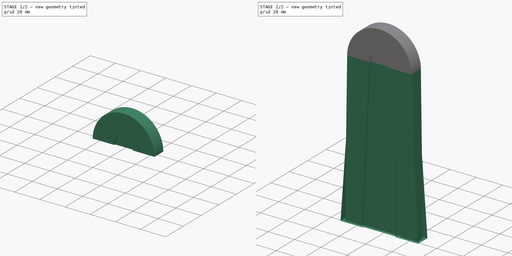
[diagram: build sequence overview — one tinted view per stage of 2, left to right]
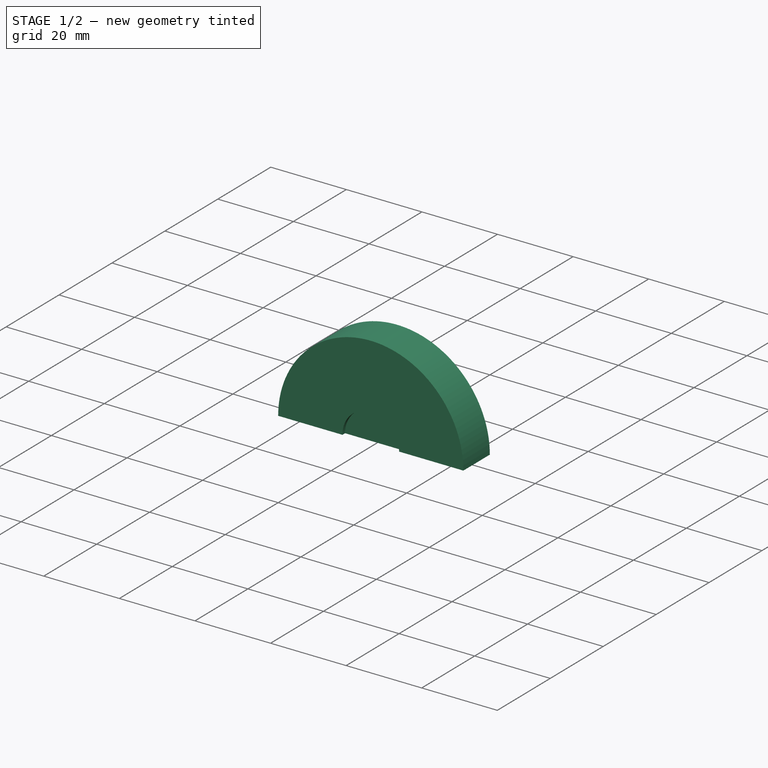
[diagram: stage 1 of 2 — iso view after this stage's code; geometry added in this stage tinted green]
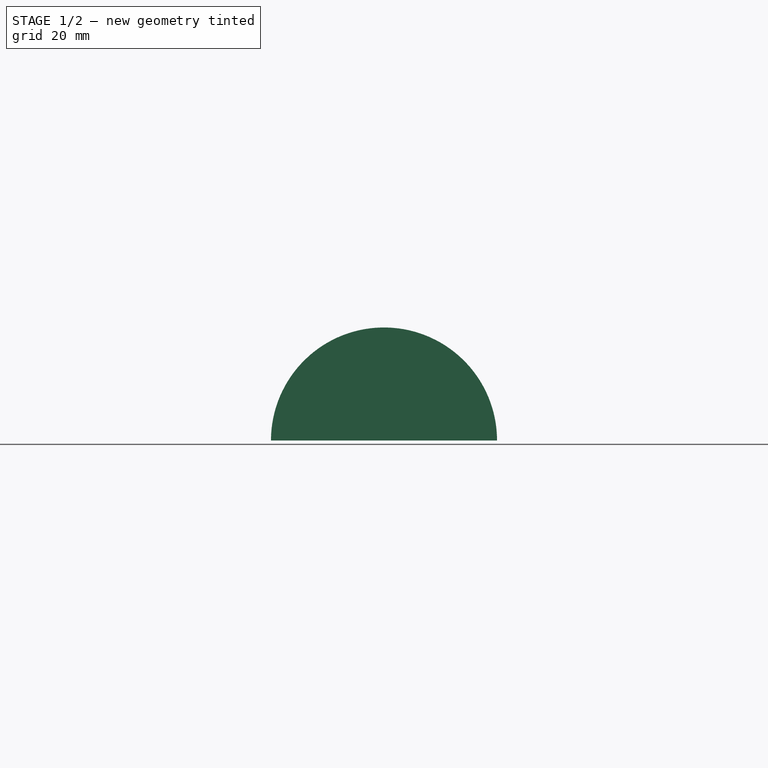
[diagram: stage 1 of 2 — front view after this stage's code; geometry added in this stage tinted green]
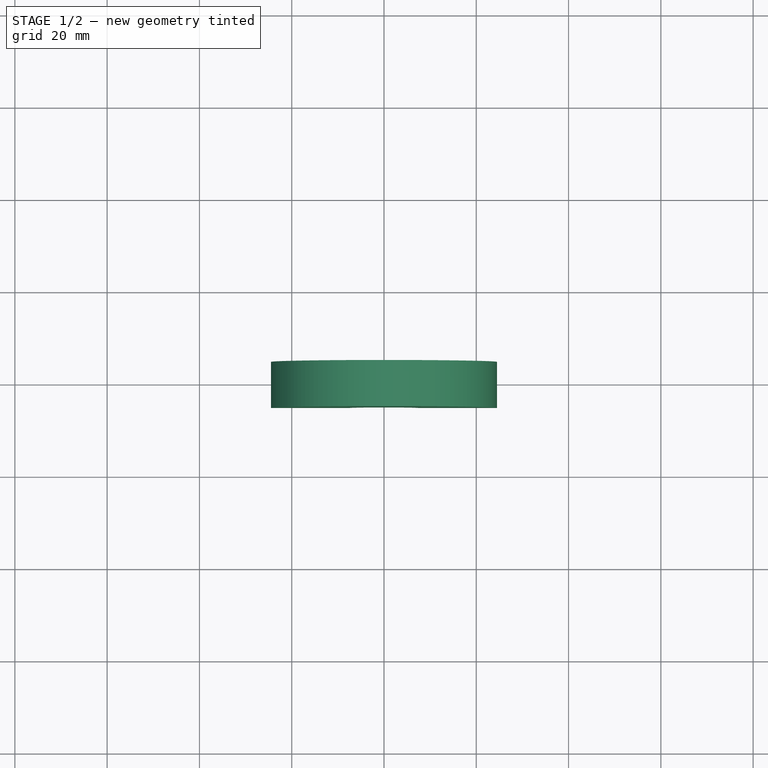
[diagram: stage 1 of 2 — top view after this stage's code; geometry added in this stage tinted green]
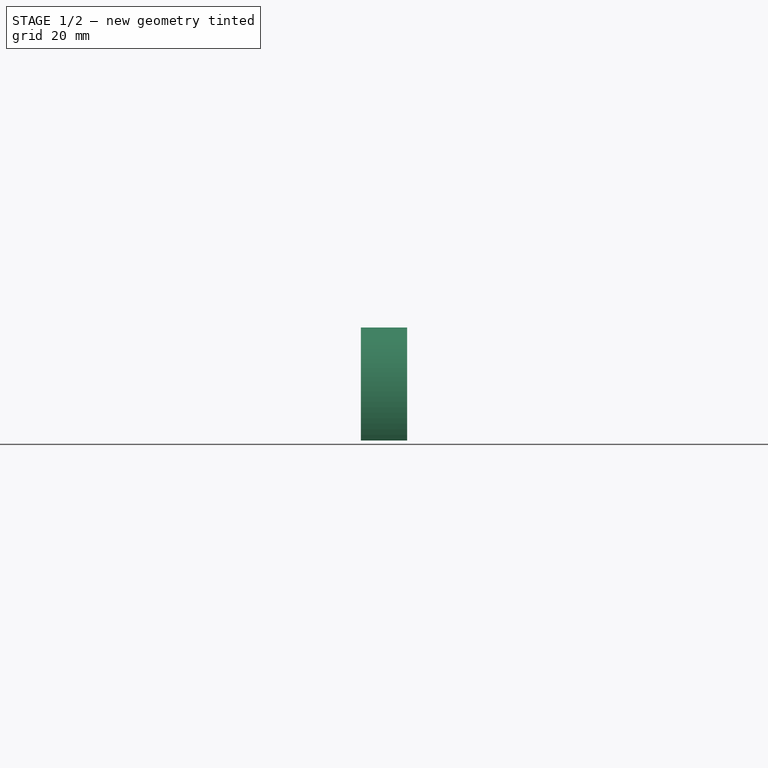
[diagram: stage 1 of 2 — right view after this stage's code; geometry added in this stage tinted green]
FCSTD DOCUMENT  (FreeCAD 0.19R24291 (Git))
Label: hoesje rotated v2
License: All rights reserved
LicenseURL: http://en.wikipedia.org/wiki/All_rights_reserved
objects: Sketcher::SketchObject×3, Spreadsheet::Sheet×1, PartDesign::Revolution×1, PartDesign::AdditiveLoft×1, PartDesign::Body×1
note: 8 computed .brp shape members not serialized (recipe doc carries the construction recipe); baked Part::Feature solids carry a one-line shape summary decoded from their .brp

FEATURE [Sketcher::SketchObject] Sketch  label="Cirle"
  FullyConstrained = true
  MapMode = 5
  Support = -> [XY_Plane]
  expr: Constraints[46] = <<values>>.shell
  expr: Constraints[45] = <<values>>.shell
  expr: Constraints[19] = <<values>>.band
  expr: Constraints[43] = <<values>>.shell
  expr: Constraints[18] = <<values>>.heightOuter
  expr: Constraints[17] = <<values>>.heightInner
  expr: Constraints[44] = <<values>>.shell
  expr: Constraints[16] = <<values>>.radius
  sketch-geometry (16):
    g0: LineSegment StartX=0 StartY=2 StartZ=0 EndX=-9.5 EndY=2 EndZ=0
    g1: LineSegment StartX=-9.5 StartY=2 StartZ=0 EndX=-9.5 EndY=3 EndZ=0
    g2: LineSegment StartX=-9.5 StartY=3 StartZ=0 EndX=-22.5 EndY=3 EndZ=0
    g3: LineSegment StartX=-22.5 StartY=3 StartZ=0 EndX=-22.5 EndY=-3 EndZ=0
    g4: LineSegment StartX=-22.5 StartY=-3 StartZ=0 EndX=-9.5 EndY=-3 EndZ=0
    g5: LineSegment StartX=-9.5 StartY=-3 StartZ=0 EndX=-9.5 EndY=-2 EndZ=0
    g6: LineSegment StartX=-9.5 StartY=-2 StartZ=0 EndX=0 EndY=-2 EndZ=0
    g7: LineSegment StartX=0 StartY=2 StartZ=0 EndX=0 EndY=5 EndZ=0
    g8: LineSegment StartX=0 StartY=5 StartZ=0 EndX=-6.5 EndY=5 EndZ=0
    g9: LineSegment StartX=-6.5 StartY=5 StartZ=0 EndX=-6.5 EndY=6 EndZ=0
    g10: LineSegment StartX=-6.5 StartY=6 StartZ=0 EndX=-25.5 EndY=6 EndZ=0
    g11: LineSegment StartX=-25.5 StartY=6 StartZ=0 EndX=-25.5 EndY=-6 EndZ=0
    g12: LineSegment StartX=-25.5 StartY=-6 StartZ=0 EndX=6.5 EndY=-6 EndZ=0
    g13: LineSegment StartX=6.5 StartY=-6 StartZ=0 EndX=6.5 EndY=-5 EndZ=0
    g14: LineSegment StartX=6.5 StartY=-5 StartZ=0 EndX=0 EndY=-5 EndZ=0
    g15: LineSegment StartX=0 StartY=-5 StartZ=0 EndX=0 EndY=-2 EndZ=0
  constraints (47):
    c: PointOnObject(g0,g-2)
    c: Horizontal(g0)
    c: Coincident(g0,g1)
    c: Vertical(g1)
    c: Coincident(g1,g2)
    c: Horizontal(g2)
    c: Coincident(g2,g3)
    c: Vertical(g3)
    c: Coincident(g3,g4)
    c: Horizontal(g4)
    c: Coincident(g4,g5)
    c: Vertical(g5)
    c: Coincident(g5,g6)
    c: Horizontal(g6)
    c: Equal(g0,g6)
    c: Equal(g1,g5)
    c: DistanceX(g0,g0) = 9.5
    c: DistanceY(g6,g0) = 4
    c: DistanceY(g3,g2) = 6
    c: DistanceX(g2,g2) = 13
    c: Symmetric(g0,g6,g-1)
    c: Coincident(g0,g7)
    c: PointOnObject(g7,g-2)
    c: Coincident(g7,g8)
    c: Horizontal(g8)
    c: Coincident(g8,g9)
    c: Vertical(g9)
    c: Coincident(g9,g10)
    c: Horizontal(g10)
    c: Coincident(g10,g11)
    c: Vertical(g11)
    c: Coincident(g11,g12)
    c: Horizontal(g12)
    c: Coincident(g12,g13)
    c: Vertical(g13)
    c: Coincident(g13,g14)
    c: PointOnObject(g14,g-2)
    c: Horizontal(g14)
    c: Coincident(g14,g15)
    c: Coincident(g15,g6)
    c: Equal(g8,g14)
    c: Equal(g9,g13)
    c: Equal(g7,g15)
    c: DistanceY(g0,g7) = 3
    c: DistanceX(g1,g8) = 3
    c: DistanceY(g1,g9) = 3
    c: DistanceX(g10,g2) = 3
FEATURE [Spreadsheet::Sheet] Spreadsheet  label="values"
  cells = A1=shell; B1(shell)==3mm; A2=height outer; B2(heightOuter)==6mm; A3=height inner; B3(heightInner)==4mm; A4=band; B4(band)==13mm; A5=radius ; B5(radius)==9.5mm; A6=opening; B6(opening)==29mm
FEATURE [PartDesign::Revolution] Revolution
  Angle = 180
  Axis = (0,1,0)
  Base = (0,0,0)
  Profile = -> Sketch
  ReferenceAxis = -> Sketch [V_Axis]
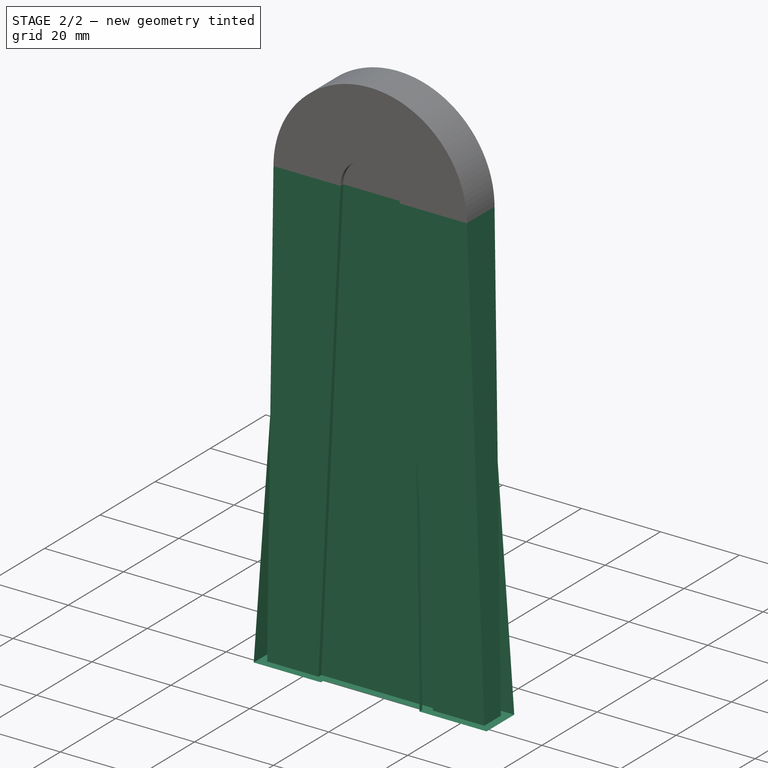
[diagram: stage 2 of 2 — iso view after this stage's code; geometry added in this stage tinted green]
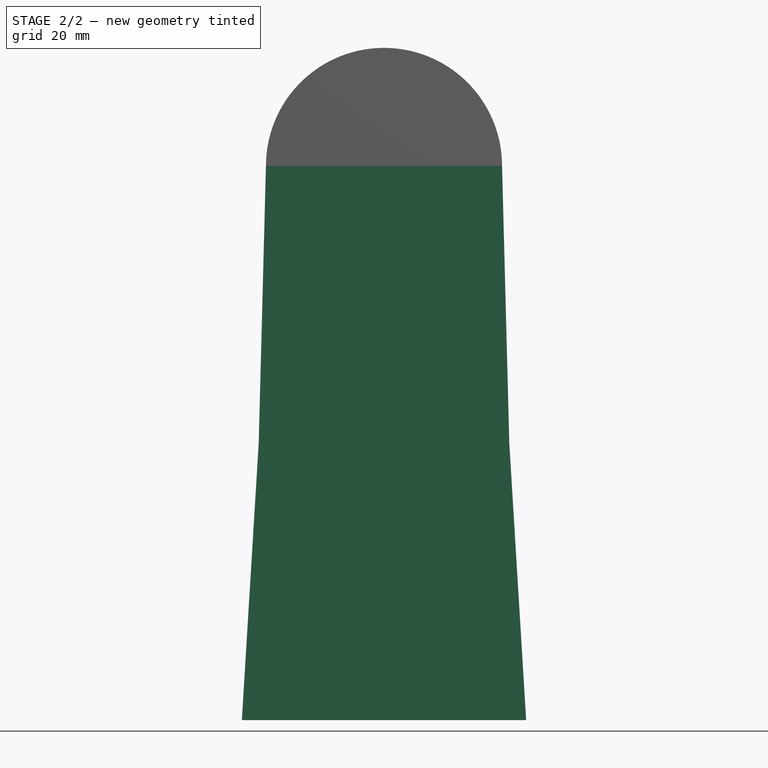
[diagram: stage 2 of 2 — front view after this stage's code; geometry added in this stage tinted green]
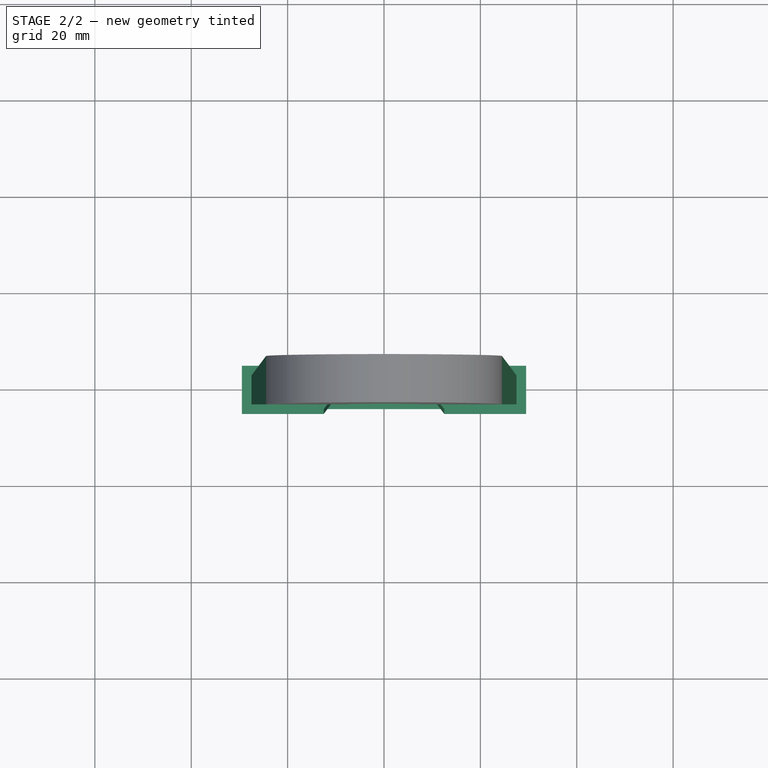
[diagram: stage 2 of 2 — top view after this stage's code; geometry added in this stage tinted green]
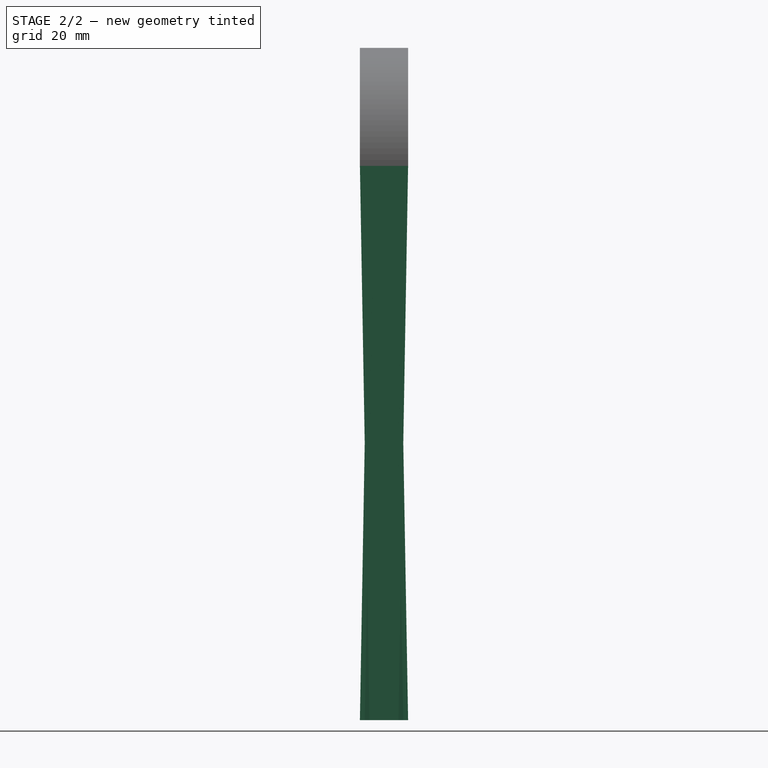
[diagram: stage 2 of 2 — right view after this stage's code; geometry added in this stage tinted green]
FEATURE [Sketcher::SketchObject] Sketch002  label="tail"
  AttachmentOffset = pos=(0,0,115) rot=(0,0,1;0rad)
  ExternalGeometry = -> [Revolution]
  FullyConstrained = true
  MapMode = 5
  Placement = pos=(0,0,-115) rot=(1,0,0;3.14159rad)
  Support = -> [Revolution]
  expr: Constraints[68] = <<values>>.shell
  expr: Constraints[65] = <<values>>.shell
  expr: Constraints[64] = <<values>>.shell
  expr: Constraints[34] = <<values>>.heightOuter
  expr: Constraints[69] = <<values>>.shell
  expr: Constraints[33] = <<values>>.heightInner
  expr: Constraints[29] = <<values>>.band
  expr: Constraints[28] = <<values>>.opening
  sketch-geometry (24):
    g0: LineSegment StartX=-14.5 StartY=2 StartZ=0 EndX=-14.5 EndY=3 EndZ=0
    g1: LineSegment StartX=-14.5 StartY=3 StartZ=0 EndX=-27.5 EndY=3 EndZ=0
    g2: LineSegment StartX=-27.5 StartY=3 StartZ=0 EndX=-27.5 EndY=-3 EndZ=0
    g3: LineSegment StartX=-27.5 StartY=-3 StartZ=0 EndX=-14.5 EndY=-3 EndZ=0
    g4: LineSegment StartX=-14.5 StartY=-3 StartZ=0 EndX=-14.5 EndY=-2 EndZ=0
    g5: LineSegment StartX=-14.5 StartY=-2 StartZ=0 EndX=14.5 EndY=-2 EndZ=0
    g6: LineSegment StartX=14.5 StartY=-2 StartZ=0 EndX=14.5 EndY=-3 EndZ=0
    g7: LineSegment StartX=14.5 StartY=-3 StartZ=0 EndX=27.5 EndY=-3 EndZ=0
    g8: LineSegment StartX=27.5 StartY=-3 StartZ=0 EndX=27.5 EndY=3 EndZ=0
    g9: LineSegment StartX=27.5 StartY=3 StartZ=0 EndX=14.5 EndY=3 EndZ=0
    g10: LineSegment StartX=14.5 StartY=3 StartZ=0 EndX=14.5 EndY=2 EndZ=0
    g11: LineSegment StartX=-14.5 StartY=2 StartZ=0 EndX=14.5 EndY=2 EndZ=0
    g12: LineSegment StartX=-29.5 StartY=5 StartZ=0 EndX=-12.5 EndY=5 EndZ=0
    g13: LineSegment StartX=-12.5 StartY=5 StartZ=0 EndX=-12.5 EndY=4 EndZ=0
    g14: LineSegment StartX=-12.5 StartY=4 StartZ=0 EndX=12.5 EndY=4 EndZ=0
    g15: LineSegment StartX=12.5 StartY=4 StartZ=0 EndX=12.5 EndY=5 EndZ=0
    g16: LineSegment StartX=12.5 StartY=5 StartZ=0 EndX=29.5 EndY=5 EndZ=0
    g17: LineSegment StartX=29.5 StartY=5 StartZ=0 EndX=29.5 EndY=-5 EndZ=0
    g18: LineSegment StartX=29.5 StartY=-5 StartZ=0 EndX=12.5 EndY=-5 EndZ=0
    g19: LineSegment StartX=12.5 StartY=-5 StartZ=0 EndX=12.5 EndY=-4 EndZ=0
    g20: LineSegment StartX=12.5 StartY=-4 StartZ=0 EndX=-12.5 EndY=-4 EndZ=0
    g21: LineSegment StartX=-12.5 StartY=-4 StartZ=0 EndX=-12.5 EndY=-5 EndZ=0
    g22: LineSegment StartX=-12.5 StartY=-5 StartZ=0 EndX=-29.5 EndY=-5 EndZ=0
    g23: LineSegment StartX=-29.5 StartY=-5 StartZ=0 EndX=-29.5 EndY=5 EndZ=0
  constraints (70):
    c: Coincident(g0,g1)
    c: Horizontal(g1)
    c: Coincident(g1,g2)
    c: Vertical(g2)
    c: Coincident(g2,g3)
    c: Horizontal(g3)
    c: Coincident(g3,g4)
    c: Coincident(g4,g5)
    c: Horizontal(g5)
    c: Coincident(g5,g6)
    c: Coincident(g6,g7)
    c: Horizontal(g7)
    c: Coincident(g7,g8)
    c: Coincident(g8,g9)
    c: Horizontal(g9)
    c: Coincident(g9,g10)
    c: Vertical(g10)
    c: Equal(g0,g10)
    c: Equal(g4,g6)
    c: Equal(g1,g3)
    c: Equal(g3,g7)
    c: Equal(g7,g9)
    c: Coincident(g11,g0)
    c: Coincident(g11,g10)
    c: Horizontal(g11)
    c: Equal(g0,g4)
    c: Vertical(g6)
    c: Vertical(g0)
    c: DistanceX(g11,g11) = 29
    c: DistanceX(g1,g1) = 13
    c: Symmetric(g8,g7,g-1)
    c: DistanceY(g-7,g-9) = 8
    c: DistanceY(g-7,g-9) = 8
    c: DistanceY(g4,g0) = 4
    c: DistanceY(g2,g1) = 6
    c: Symmetric(g7,g2,g-2)
    c: Horizontal(g12)
    c: Coincident(g12,g13)
    c: Vertical(g13)
    c: Coincident(g13,g14)
    c: Horizontal(g14)
    c: Coincident(g14,g15)
    c: Vertical(g15)
    c: Coincident(g15,g16)
    c: Horizontal(g16)
    c: Coincident(g16,g17)
    c: Coincident(g17,g18)
    c: Horizontal(g18)
    c: Coincident(g18,g19)
    c: Vertical(g19)
    c: Coincident(g19,g20)
    c: Horizontal(g20)
    c: Coincident(g20,g21)
    c: Vertical(g21)
    c: Coincident(g21,g22)
    c: Horizontal(g22)
    c: Coincident(g22,g23)
    c: Coincident(g23,g12)
    c: Vertical(g23)
    c: Equal(g23,g17)
    c: Equal(g22,g18)
    c: Equal(g18,g16)
    c: Equal(g16,g12)
    c: Equal(g15,g19)
    c: DistanceY(g8,g16) = 2
    c: DistanceX(g8,g16) = 2
    c: Symmetric(g16,g17,g-1)
    c: Symmetric(g22,g17,g-2)
    c: DistanceX(g18,g6) = 2
    c: DistanceY(g19,g5) = 2
FEATURE [Sketcher::SketchObject] Sketch003  label="head"
  ExternalGeometry = -> [Revolution]
  FullyConstrained = true
  MapMode = 5
  Placement = pos=(0,0,0) rot=(1,0,0;3.14159rad)
  Support = -> [Revolution]
  sketch-geometry (24):
    g0: LineSegment StartX=-24.5 StartY=5 StartZ=0 EndX=-7.5 EndY=5 EndZ=0
    g1: LineSegment StartX=-7.5 StartY=5 StartZ=0 EndX=-7.5 EndY=4 EndZ=0
    g2: LineSegment StartX=-7.5 StartY=4 StartZ=0 EndX=7.5 EndY=4 EndZ=0
    g3: LineSegment StartX=7.5 StartY=4 StartZ=0 EndX=7.5 EndY=5 EndZ=0
    g4: LineSegment StartX=7.5 StartY=5 StartZ=0 EndX=24.5 EndY=5 EndZ=0
    g5: LineSegment StartX=24.5 StartY=5 StartZ=0 EndX=24.5 EndY=-5 EndZ=0
    g6: LineSegment StartX=24.5 StartY=-5 StartZ=0 EndX=7.5 EndY=-5 EndZ=0
    g7: LineSegment StartX=7.5 StartY=-5 StartZ=0 EndX=7.5 EndY=-4 EndZ=0
    g8: LineSegment StartX=7.5 StartY=-4 StartZ=0 EndX=-7.5 EndY=-4 EndZ=0
    g9: LineSegment StartX=-7.5 StartY=-4 StartZ=0 EndX=-7.5 EndY=-5 EndZ=0
    g10: LineSegment StartX=-7.5 StartY=-5 StartZ=0 EndX=-24.5 EndY=-5 EndZ=0
    g11: LineSegment StartX=-24.5 StartY=-5 StartZ=0 EndX=-24.5 EndY=5 EndZ=0
    g12: LineSegment StartX=-22.5 StartY=3 StartZ=0 EndX=-9.5 EndY=3 EndZ=0
    g13: LineSegment StartX=-9.5 StartY=3 StartZ=0 EndX=-9.5 EndY=2 EndZ=0
    g14: LineSegment StartX=-9.5 StartY=2 StartZ=0 EndX=9.5 EndY=2 EndZ=0
    g15: LineSegment StartX=9.5 StartY=2 StartZ=0 EndX=9.5 EndY=3 EndZ=0
    g16: LineSegment StartX=9.5 StartY=3 StartZ=0 EndX=22.5 EndY=3 EndZ=0
    g17: LineSegment StartX=22.5 StartY=3 StartZ=0 EndX=22.5 EndY=-3 EndZ=0
    g18: LineSegment StartX=22.5 StartY=-3 StartZ=0 EndX=9.5 EndY=-3 EndZ=0
    g19: LineSegment StartX=9.5 StartY=-3 StartZ=0 EndX=9.5 EndY=-2 EndZ=0
    g20: LineSegment StartX=9.5 StartY=-2 StartZ=0 EndX=-9.5 EndY=-2 EndZ=0
    g21: LineSegment StartX=-9.5 StartY=-2 StartZ=0 EndX=-9.5 EndY=-3 EndZ=0
    g22: LineSegment StartX=-9.5 StartY=-3 StartZ=0 EndX=-22.5 EndY=-3 EndZ=0
    g23: LineSegment StartX=-22.5 StartY=-3 StartZ=0 EndX=-22.5 EndY=3 EndZ=0
  constraints (48):
    c: Coincident(g-5,g0)
    c: Coincident(g0,g-6)
    c: Coincident(g0,g1)
    c: Coincident(g1,g-6)
    c: Coincident(g1,g2)
    c: Coincident(g2,g-9)
    c: Coincident(g2,g3)
    c: Coincident(g3,g-10)
    c: Coincident(g3,g4)
    c: Coincident(g4,g-11)
    c: Coincident(g4,g5)
    c: Coincident(g5,g-12)
    c: Coincident(g5,g6)
    c: Coincident(g6,g-13)
    c: Coincident(g6,g7)
    c: Coincident(g7,g-14)
    c: Coincident(g7,g8)
    c: Coincident(g8,g-16)
    c: Coincident(g8,g9)
    c: Coincident(g9,g-16)
    c: Coincident(g9,g10)
    c: Coincident(g10,g-4)
    c: Coincident(g10,g11)
    c: Coincident(g11,g0)
    c: Coincident(g-18,g12)
    c: Coincident(g12,g-19)
    c: Coincident(g12,g13)
    c: Coincident(g13,g-20)
    c: Coincident(g13,g14)
    c: Coincident(g14,g-22)
    c: Coincident(g14,g15)
    c: Coincident(g15,g-23)
    c: Coincident(g15,g16)
    c: Coincident(g16,g-24)
    c: Coincident(g16,g17)
    c: Coincident(g17,g-25)
    c: Coincident(g17,g18)
    c: Coincident(g18,g-26)
    c: Coincident(g18,g19)
    c: Coincident(g19,g-27)
    c: Coincident(g19,g20)
    c: Coincident(g20,g-29)
    c: Coincident(g20,g21)
    c: Coincident(g21,g-30)
    c: Coincident(g21,g22)
    c: Coincident(g22,g-30)
    c: Coincident(g22,g23)
    c: Coincident(g23,g12)
FEATURE [PartDesign::AdditiveLoft] AdditiveLoft
  BaseFeature = -> Revolution
  Closed = true
  Profile = -> Sketch003
  Refine = true
  Ruled = false
  Sections = -> [Sketch002]
FEATURE [PartDesign::Body] Body
  Group = -> [Sketch,Revolution,Sketch002,Sketch003,AdditiveLoft]
  Origin = -> Origin
  Tip = -> Revolution
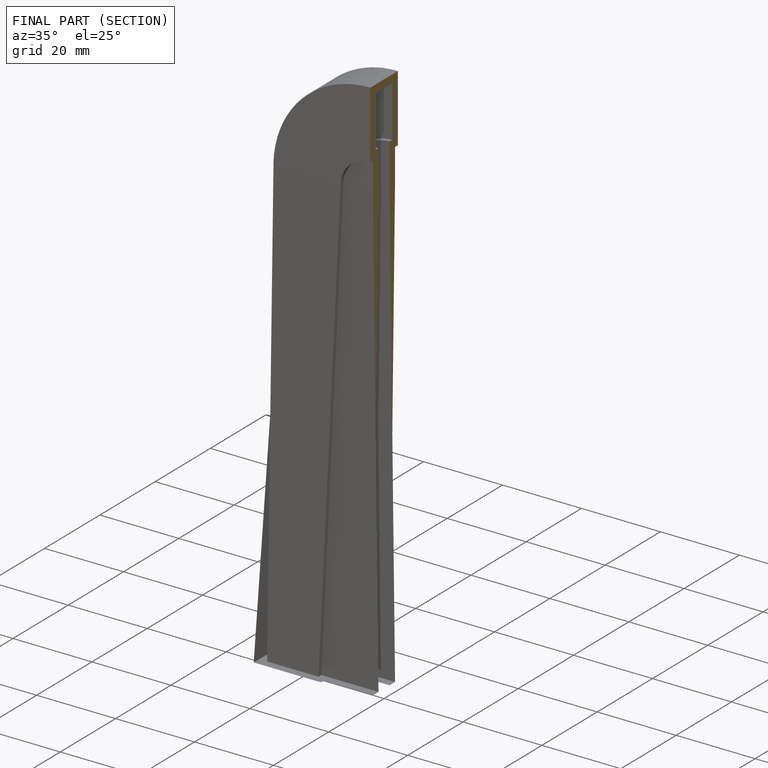
[diagram: finished part — half-section view (interior)]
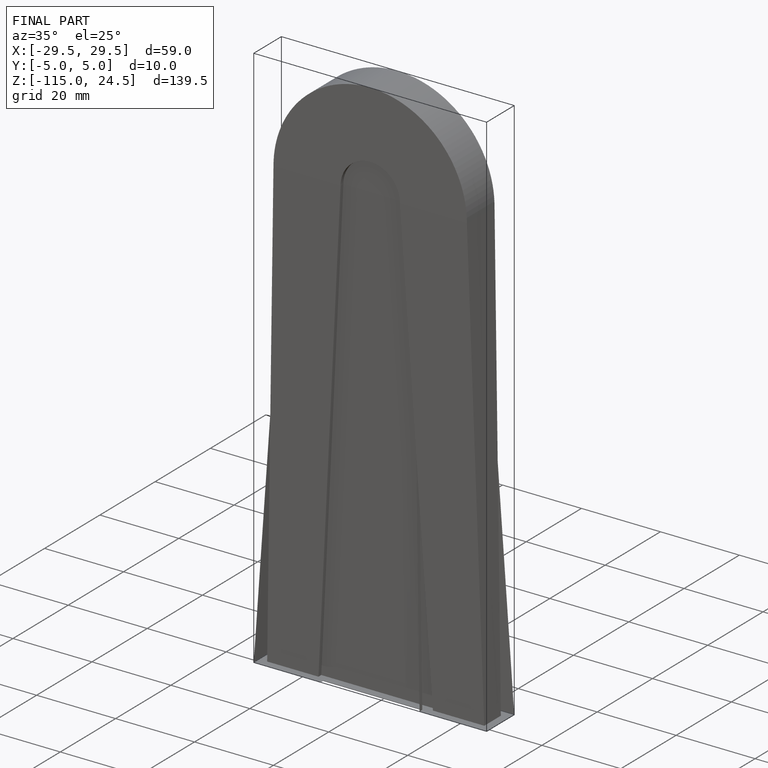
[diagram: finished part — iso view with bounding-box wireframe]
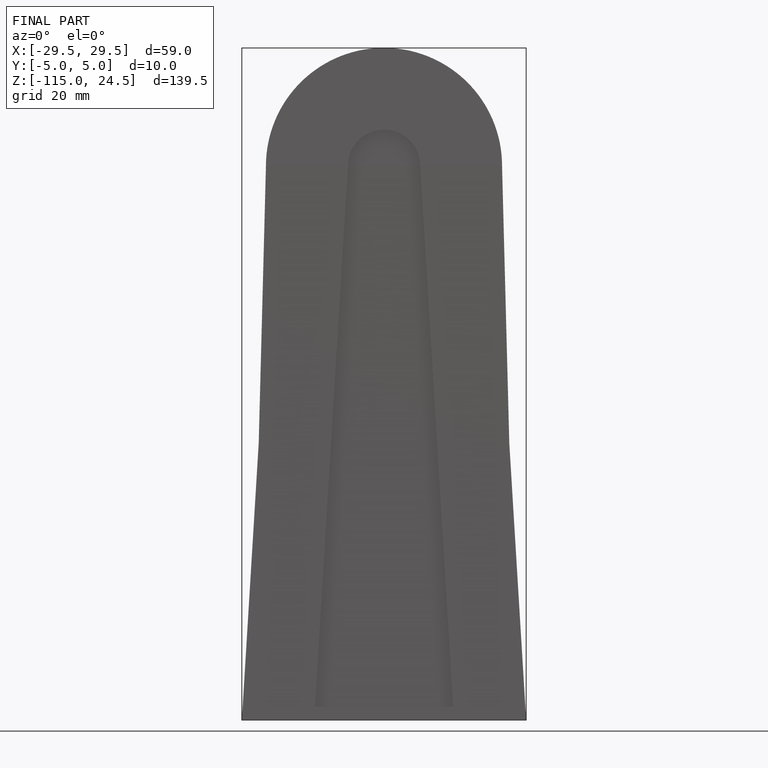
[diagram: finished part — front view with bounding-box wireframe]
